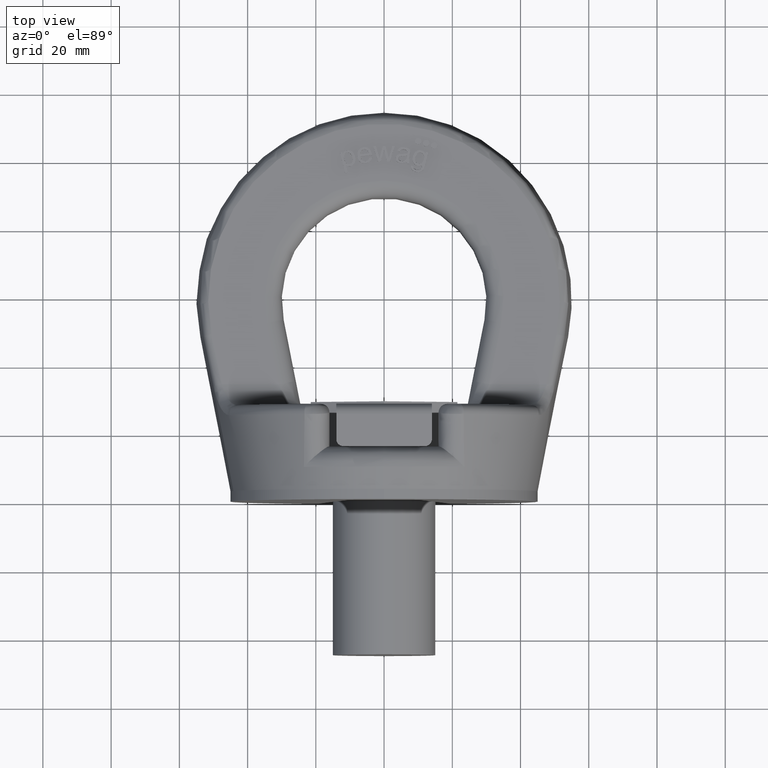
[diagram: clean part render]
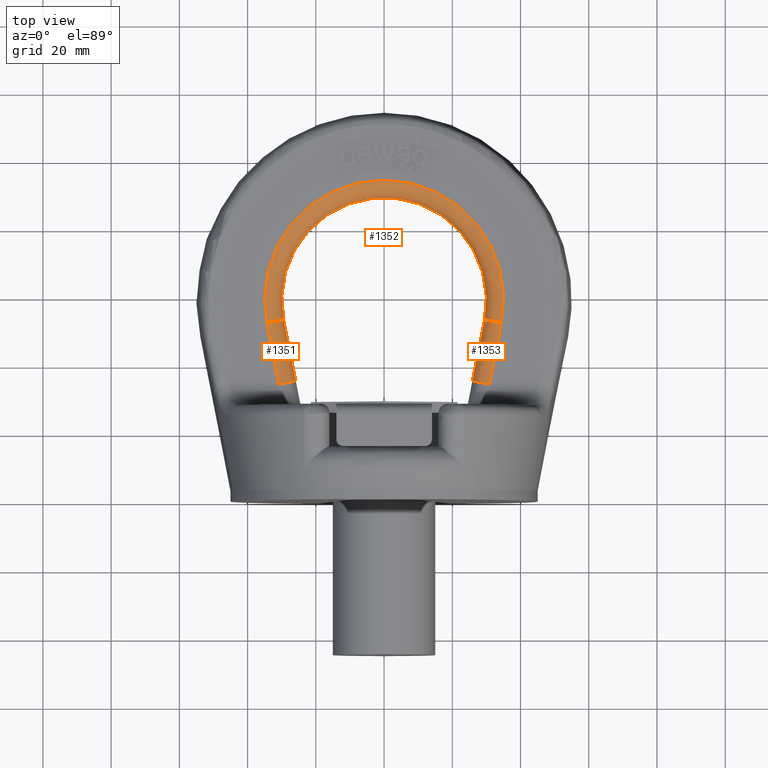
[diagram: same view with one multi-face feature highlighted, each face labeled with its STEP entity id]
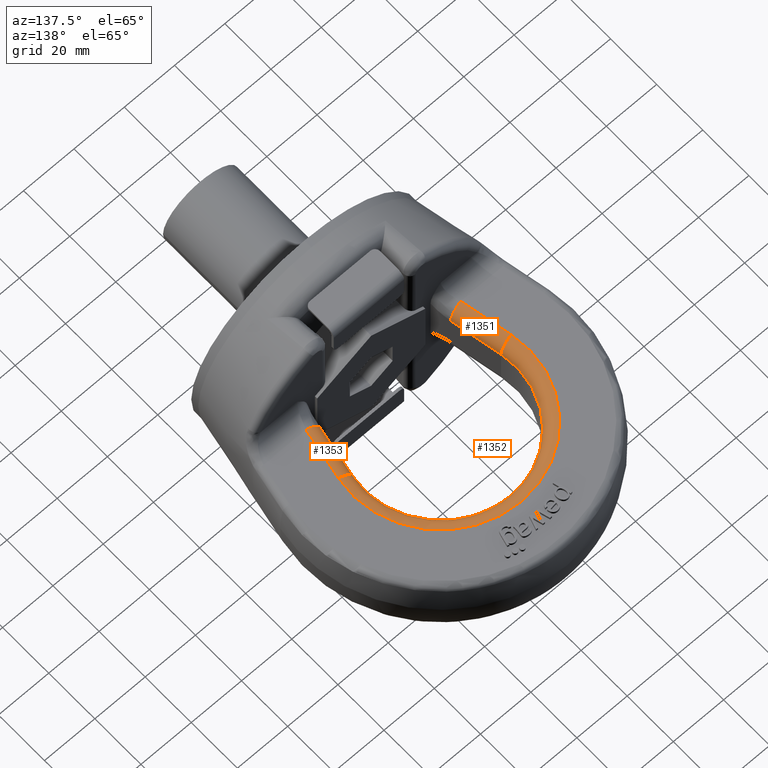
[diagram: same view with one multi-face feature highlighted, each face labeled with its STEP entity id]
A machine part, top view. The highlighted faces form ONE feature: a constant-radius fillet chain: 3 tangent blend faces with common blend radius 5 mm. The faces share edges in the B-rep.
A second angle (auxiliary view) of the same feature is appended — it is thin or edge-on in the first view.
Their STEP definitions:
[1] entity #1353 (Cylinder):
#1064=CYLINDRICAL_SURFACE('',#5200,5.);
#1129=FACE_OUTER_BOUND('',#1869,.T.);
#1353=ADVANCED_FACE('',(#1129),#1064,.T.);
#1704=CIRCLE('',#5197,5.);
#1705=CIRCLE('',#5199,5.);
#1869=EDGE_LOOP('',(#2980,#2981,#2982,#2983));
#2102=LINE('',#6401,#2382);
#2153=LINE('',#6887,#2433);
#2382=VECTOR('',#5408,1.);
#2433=VECTOR('',#5525,1.);
#2980=ORIENTED_EDGE('',*,*,#4448,.F.);
#2981=ORIENTED_EDGE('',*,*,#4404,.F.);
#2982=ORIENTED_EDGE('',*,*,#4449,.F.);
#2983=ORIENTED_EDGE('',*,*,#4297,.F.);
#3909=VERTEX_POINT('',#6400);
#3910=VERTEX_POINT('',#6402);
#4004=VERTEX_POINT('',#6871);
#4009=VERTEX_POINT('',#6886);
#4297=EDGE_CURVE('',#3909,#3910,#2102,.T.);
#4404=EDGE_CURVE('',#4009,#4004,#2153,.T.);
#4448=EDGE_CURVE('',#4004,#3909,#1704,.T.);
#4449=EDGE_CURVE('',#3910,#4009,#1705,.T.);
#5197=AXIS2_PLACEMENT_3D('',#7160,#5629,#5630);
#5199=AXIS2_PLACEMENT_3D('',#7162,#5633,#5634);
#5200=AXIS2_PLACEMENT_3D('',#7163,#5635,#5636);
#5408=DIRECTION('',(-0.193807478881527,-0.981039581836323,1.24091945357475E-16));
#5525=DIRECTION('',(0.193807478881527,0.981039581836323,-1.24091945357475E-16));
#5629=DIRECTION('',(0.193807478881526,0.981039581836323,0.));
#5630=DIRECTION('',(0.981039581836322,-0.193807478881526,0.));
#5633=DIRECTION('',(-0.193807478881525,-0.981039581836323,0.));
#5634=DIRECTION('',(0.981039581836322,-0.193807478881525,0.));
#5635=DIRECTION('',(0.193807478881527,0.981039581836323,-1.24091945357475E-16));
#5636=DIRECTION('',(-0.981039581836322,0.193807478881525,0.));
#6400=CARTESIAN_POINT('',(34.3363853642713,52.2167382391466,12.5));
#6401=CARTESIAN_POINT('',(30.5955628692849,33.2809626055923,12.5));
#6402=CARTESIAN_POINT('',(30.7869992779979,34.25,12.5));
#6871=CARTESIAN_POINT('',(29.4311874550897,53.1857756335542,7.50000000000001));
#6886=CARTESIAN_POINT('',(25.8818013688163,35.2190373944076,7.50000000000001));
#6887=CARTESIAN_POINT('',(29.4311874550897,53.1857756335541,7.50000000000001));
#7160=CARTESIAN_POINT('',(34.3363853642713,52.2167382391466,7.50000000000001));
#7162=CARTESIAN_POINT('',(30.7869992779979,34.25,7.50000000000001));
#7163=CARTESIAN_POINT('',(50.8267651625313,135.689860096825,7.5));
[2] entity #1352 (Torus):
#1018=TOROIDAL_SURFACE('',#5198,35.,5.);
#1128=FACE_OUTER_BOUND('',#1868,.T.);
#1352=ADVANCED_FACE('',(#1128),#1018,.T.);
#1669=CIRCLE('',#5120,35.);
#1687=CIRCLE('',#5147,30.);
#1703=CIRCLE('',#5195,5.);
#1704=CIRCLE('',#5197,5.);
#1868=EDGE_LOOP('',(#2976,#2977,#2978,#2979));
#2976=ORIENTED_EDGE('',*,*,#4447,.F.);
#2977=ORIENTED_EDGE('',*,*,#4396,.F.);
#2978=ORIENTED_EDGE('',*,*,#4448,.T.);
#2979=ORIENTED_EDGE('',*,*,#4296,.F.);
#3908=VERTEX_POINT('',#6399);
#3909=VERTEX_POINT('',#6400);
#4004=VERTEX_POINT('',#6871);
#4005=VERTEX_POINT('',#6873);
#4296=EDGE_CURVE('',#3908,#3909,#1669,.T.);
#4396=EDGE_CURVE('',#4004,#4005,#1687,.T.);
#4447=EDGE_CURVE('',#4005,#3908,#1703,.T.);
#4448=EDGE_CURVE('',#4004,#3909,#1704,.T.);
#5120=AXIS2_PLACEMENT_3D('',#6398,#5406,#5407);
#5147=AXIS2_PLACEMENT_3D('',#6872,#5508,#5509);
#5195=AXIS2_PLACEMENT_3D('',#7158,#5625,#5626);
#5197=AXIS2_PLACEMENT_3D('',#7160,#5629,#5630);
#5198=AXIS2_PLACEMENT_3D('',#7161,#5631,#5632);
#5406=DIRECTION('',(0.,-1.26490253456642E-16,-1.));
#5407=DIRECTION('',(0.,1.,-1.48690583655155E-16));
#5508=DIRECTION('',(0.,1.26490253456642E-16,1.));
#5509=DIRECTION('',(0.,1.,-1.15648231731787E-16));
#5625=DIRECTION('',(0.193807478881526,-0.981039581836323,0.));
#5626=DIRECTION('',(-0.981039581836322,-0.193807478881526,0.));
#5629=DIRECTION('',(0.193807478881526,0.981039581836323,0.));
#5630=DIRECTION('',(0.981039581836322,-0.193807478881526,0.));
#5631=DIRECTION('',(0.,-1.26490253456642E-16,-1.));
#5632=DIRECTION('',(0.,1.,-1.30104260698261E-16));
#6398=CARTESIAN_POINT('',(0.,59.,12.5));
#6399=CARTESIAN_POINT('',(-34.3363853642713,52.2167382391466,12.5));
#6400=CARTESIAN_POINT('',(34.3363853642713,52.2167382391466,12.5));
#6871=CARTESIAN_POINT('',(29.4311874550897,53.1857756335542,7.50000000000001));
#6872=CARTESIAN_POINT('',(0.,59.,7.50000000000001));
#6873=CARTESIAN_POINT('',(-29.4311874550897,53.1857756335542,7.50000000000001));
#7158=CARTESIAN_POINT('',(-34.3363853642713,52.2167382391466,7.50000000000001));
#7160=CARTESIAN_POINT('',(34.3363853642713,52.2167382391466,7.50000000000001));
#7161=CARTESIAN_POINT('',(0.,59.,7.50000000000001));
[3] entity #1351 (Cylinder):
#1063=CYLINDRICAL_SURFACE('',#5196,5.);
#1127=FACE_OUTER_BOUND('',#1867,.T.);
#1351=ADVANCED_FACE('',(#1127),#1063,.T.);
#1702=CIRCLE('',#5194,5.);
#1703=CIRCLE('',#5195,5.);
#1867=EDGE_LOOP('',(#2972,#2973,#2974,#2975));
#2105=LINE('',#6419,#2385);
#2151=LINE('',#6878,#2431);
#2385=VECTOR('',#5413,1.);
#2431=VECTOR('',#5515,1.);
#2972=ORIENTED_EDGE('',*,*,#4446,.F.);
#2973=ORIENTED_EDGE('',*,*,#4399,.F.);
#2974=ORIENTED_EDGE('',*,*,#4447,.T.);
#2975=ORIENTED_EDGE('',*,*,#4303,.F.);
#3908=VERTEX_POINT('',#6399);
#3915=VERTEX_POINT('',#6418);
#4005=VERTEX_POINT('',#6873);
#4007=VERTEX_POINT('',#6879);
#4303=EDGE_CURVE('',#3915,#3908,#2105,.T.);
#4399=EDGE_CURVE('',#4005,#4007,#2151,.T.);
#4446=EDGE_CURVE('',#4007,#3915,#1702,.T.);
#4447=EDGE_CURVE('',#4005,#3908,#1703,.T.);
#5194=AXIS2_PLACEMENT_3D('',#7139,#5623,#5624);
#5195=AXIS2_PLACEMENT_3D('',#7158,#5625,#5626);
#5196=AXIS2_PLACEMENT_3D('',#7159,#5627,#5628);
#5413=DIRECTION('',(-0.193807478881527,0.981039581836323,-1.24091945357475E-16));
#5515=DIRECTION('',(0.193807478881527,-0.981039581836323,1.24091945357475E-16));
#5623=DIRECTION('',(0.193807478881526,-0.981039581836323,-1.36146591477915E-15));
#5624=DIRECTION('',(-0.981039581836323,-0.193807478881526,0.));
#5625=DIRECTION('',(0.193807478881526,-0.981039581836323,0.));
#5626=DIRECTION('',(-0.981039581836322,-0.193807478881526,0.));
#5627=DIRECTION('',(0.193807478881527,-0.981039581836323,1.24091945357475E-16));
#5628=DIRECTION('',(0.981039581836322,0.193807478881528,0.));
#6399=CARTESIAN_POINT('',(-34.3363853642713,52.2167382391466,12.5));
#6418=CARTESIAN_POINT('',(-30.7869992779979,34.25,12.5));
#6419=CARTESIAN_POINT('',(-34.3363853642713,52.2167382391466,12.5));
#6873=CARTESIAN_POINT('',(-29.4311874550897,53.1857756335542,7.50000000000001));
#6878=CARTESIAN_POINT('',(-25.6903649601032,34.25,7.50000000000001));
#6879=CARTESIAN_POINT('',(-25.8818013688163,35.2190373944076,7.50000000000001));
#7139=CARTESIAN_POINT('',(-30.7869992779979,34.25,7.50000000000002));
#7158=CARTESIAN_POINT('',(-34.3363853642713,52.2167382391466,7.50000000000001));
#7159=CARTESIAN_POINT('',(-42.5632706110403,93.8606423283143,7.5));